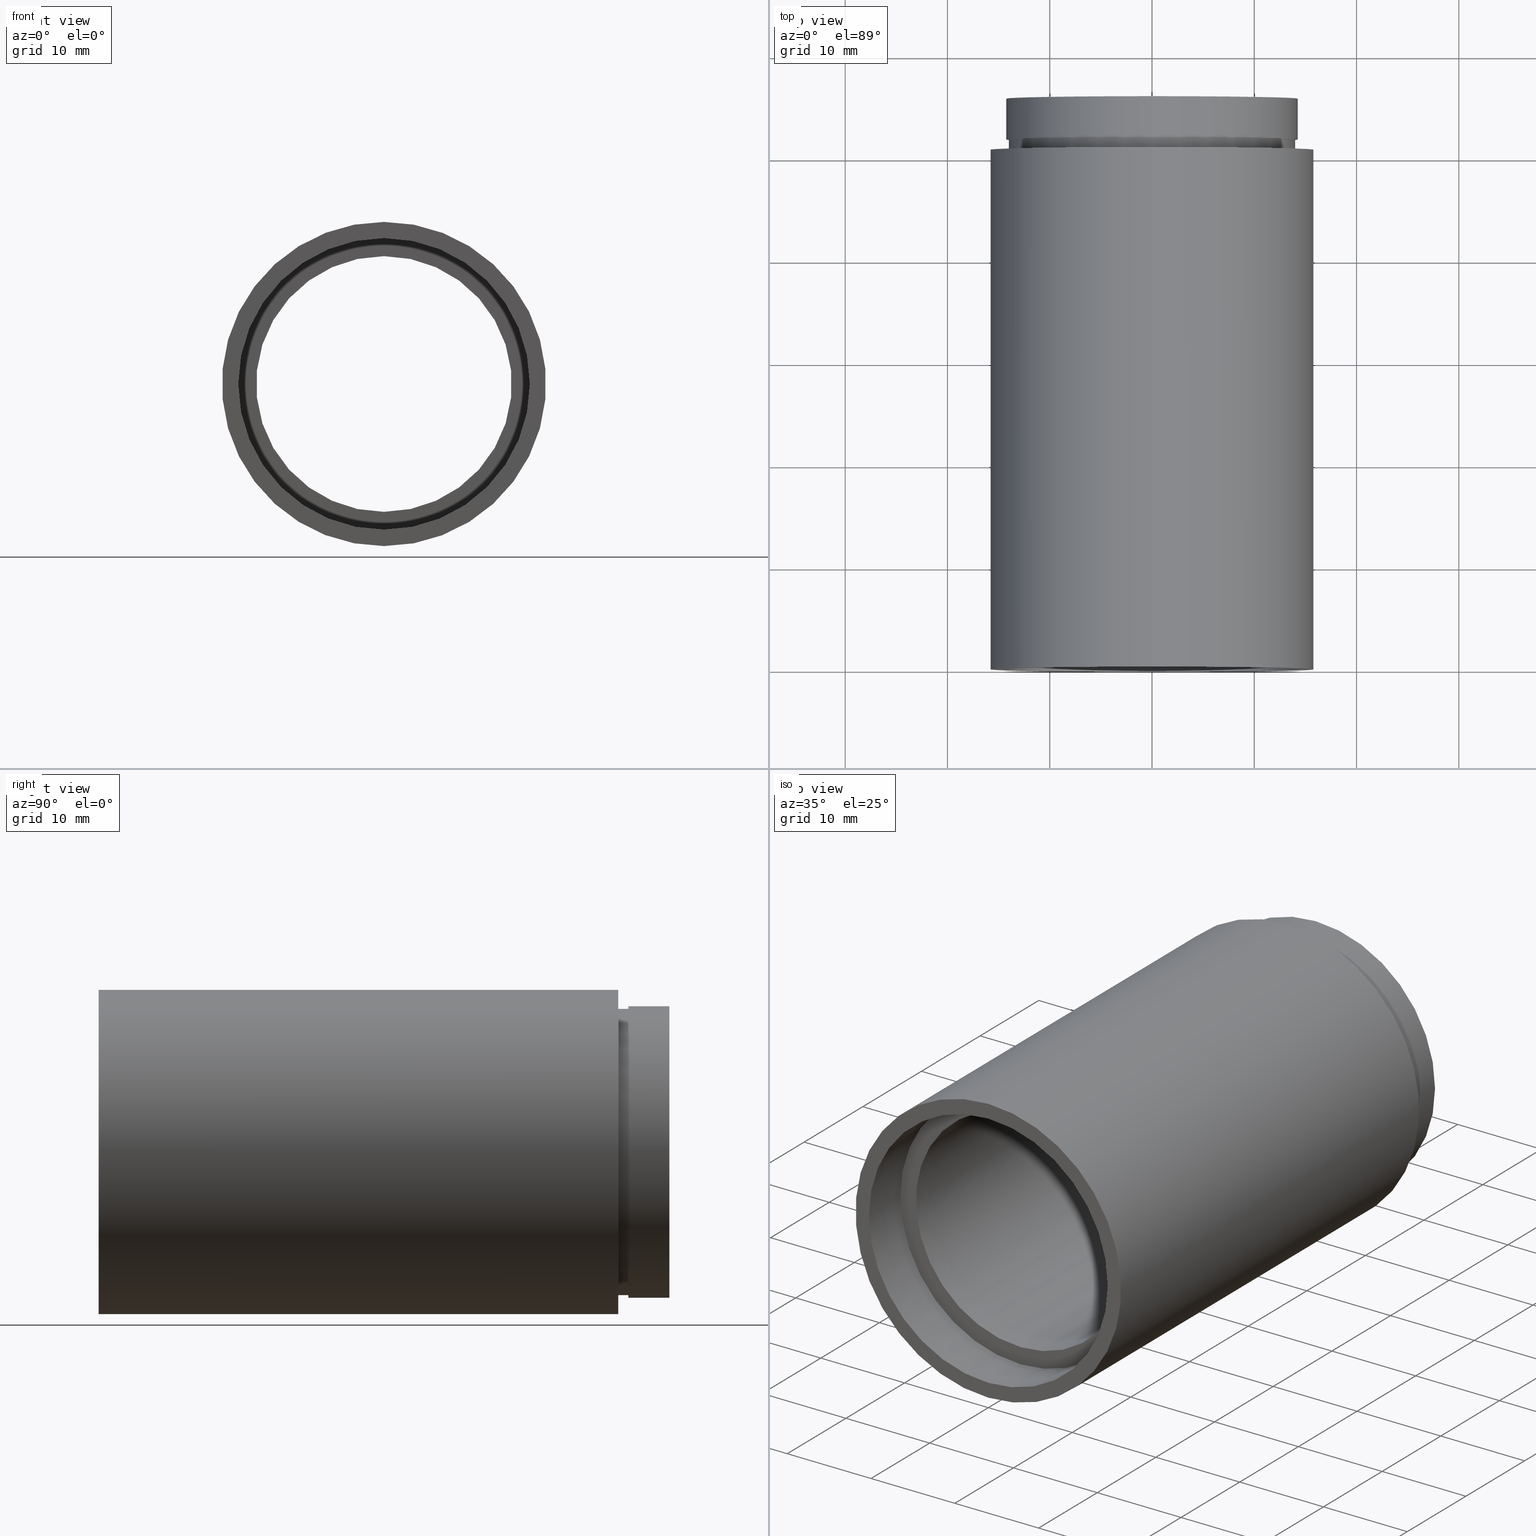
[diagram: canonical four-view strip — front | top / right | iso, engineering-drawing reading convention]
A machine part, canonical four-view strip (front | top / right | iso — engineering-drawing reading convention). The complete STEP part file that produces these views, byte-faithful:
ISO-10303-21;
HEADER;
FILE_DESCRIPTION (( 'STEP AP214' ),
    '1' );
FILE_NAME ('503044.STEP',
    '2019-09-06T06:05:43',
    ( '' ),
    ( '' ),
    'SwSTEP 2.0',
    'SolidWorks 2016',
    '' );
FILE_SCHEMA (( 'AUTOMOTIVE_DESIGN' ));
ENDSEC;

DATA;
#1 = ORIENTED_EDGE ( 'NONE', *, *, #215, .F. ) ;
#2 = CARTESIAN_POINT ( 'NONE',  ( 0.0000000000000000000, 51.79999999999998300, 0.0000000000000000000 ) ) ;
#3 = MANIFOLD_SOLID_BREP ( '��ת1', #25 ) ;
#4 = MECHANICAL_DESIGN_GEOMETRIC_PRESENTATION_REPRESENTATION (  '', ( #426 ), #65 ) ;
#5 =( LENGTH_UNIT ( ) NAMED_UNIT ( * ) SI_UNIT ( .MILLI., .METRE. ) );
#6 = AXIS2_PLACEMENT_3D ( 'NONE', #520, #522, #86 ) ;
#7 = SURFACE_STYLE_USAGE ( .BOTH. , #301 ) ;
#8 = EDGE_LOOP ( 'NONE', ( #607, #56 ) ) ;
#9 = SURFACE_STYLE_FILL_AREA ( #498 ) ;
#10 = AXIS2_PLACEMENT_3D ( 'NONE', #124, #470, #563 ) ;
#11 = VECTOR ( 'NONE', #196, 1000.000000000000000 ) ;
#12 = EDGE_CURVE ( 'NONE', #551, #74, #53, .T. ) ;
#13 = FILL_AREA_STYLE_COLOUR ( '', #140 ) ;
#14 = ORIENTED_EDGE ( 'NONE', *, *, #52, .T. ) ;
#15 = CYLINDRICAL_SURFACE ( 'NONE', #527, 14.25000000000001400 ) ;
#16 = DIRECTION ( 'NONE',  ( 1.000000000000000000, 0.0000000000000000000, 0.0000000000000000000 ) ) ;
#17 = CIRCLE ( 'NONE', #128, 14.00000000000001200 ) ;
#18 = ORIENTED_EDGE ( 'NONE', *, *, #42, .T. ) ;
#19 = ORIENTED_EDGE ( 'NONE', *, *, #236, .T. ) ;
#20 = CARTESIAN_POINT ( 'NONE',  ( 1.745121688784978200E-015, 161.3761669434274500, -14.25000000000000000 ) ) ;
#21 = PRODUCT_DEFINITION_FORMATION_WITH_SPECIFIED_SOURCE ( '�κ�', '', #295, .NOT_KNOWN. ) ;
#22 = CIRCLE ( 'NONE', #143, 14.35000000000001900 ) ;
#23 = FACE_OUTER_BOUND ( 'NONE', #418, .T. ) ;
#24 = DIRECTION ( 'NONE',  ( -0.0000000000000000000, 1.000000000000000000, -0.0000000000000000000 ) ) ;
#25 = CLOSED_SHELL ( 'NONE', ( #580, #434, #207, #622, #352, #342, #587, #243, #344, #500, #58, #494, #446, #401, #104, #251, #303, #159 ) ) ;
#26 = PLANE ( 'NONE',  #355 ) ;
#27 = SURFACE_STYLE_FILL_AREA ( #454 ) ;
#28 =( GEOMETRIC_REPRESENTATION_CONTEXT ( 3 ) GLOBAL_UNCERTAINTY_ASSIGNED_CONTEXT ( ( #409 ) ) GLOBAL_UNIT_ASSIGNED_CONTEXT ( ( #245, #392, #496 ) ) REPRESENTATION_CONTEXT ( 'NONE', 'WORKASPACE' ) );
#29 = CARTESIAN_POINT ( 'NONE',  ( 0.0000000000000000000, 161.3761669434274500, 0.0000000000000000000 ) ) ;
#30 = EDGE_CURVE ( 'NONE', #74, #222, #565, .T. ) ;
#31 = CARTESIAN_POINT ( 'NONE',  ( 0.0000000000000000000, 161.3761669434274500, 14.00000000000001200 ) ) ;
#32 = DIRECTION ( 'NONE',  ( 0.0000000000000000000, -0.0000000000000000000, -1.000000000000000000 ) ) ;
#33 = CYLINDRICAL_SURFACE ( 'NONE', #472, 15.85000000000002100 ) ;
#34 = LINE ( 'NONE', #382, #114 ) ;
#35 = DIRECTION ( 'NONE',  ( -0.0000000000000000000, 1.000000000000000000, -0.0000000000000000000 ) ) ;
#36 = VERTEX_POINT ( 'NONE', #123 ) ;
#37 = COLOUR_RGB ( '',1.000000000000000000, 1.000000000000000000, 1.000000000000000000 ) ;
#38 = DIRECTION ( 'NONE',  ( 0.0000000000000000000, -0.0000000000000000000, -1.000000000000000000 ) ) ;
#39 = DIRECTION ( 'NONE',  ( 0.0000000000000000000, 0.0000000000000000000, 1.000000000000000000 ) ) ;
#40 = DIRECTION ( 'NONE',  ( 0.0000000000000000000, 0.0000000000000000000, 1.000000000000000000 ) ) ;
#41 = DIRECTION ( 'NONE',  ( -0.0000000000000000000, 1.000000000000000000, -0.0000000000000000000 ) ) ;
#42 = EDGE_CURVE ( 'NONE', #186, #495, #507, .T. ) ;
#43 = DIRECTION ( 'NONE',  ( -0.0000000000000000000, 1.000000000000000000, -0.0000000000000000000 ) ) ;
#44 = DIRECTION ( 'NONE',  ( -0.0000000000000000000, 1.000000000000000000, -0.0000000000000000000 ) ) ;
#45 = DIRECTION ( 'NONE',  ( -0.0000000000000000000, 1.000000000000000000, -0.0000000000000000000 ) ) ;
#46 = VERTEX_POINT ( 'NONE', #69 ) ;
#47 = AXIS2_PLACEMENT_3D ( 'NONE', #548, #253, #588 ) ;
#48 = EDGE_CURVE ( 'NONE', #559, #46, #555, .T. ) ;
#49 = CYLINDRICAL_SURFACE ( 'NONE', #47, 14.25000000000001400 ) ;
#50 = CARTESIAN_POINT ( 'NONE',  ( 0.0000000000000000000, 5.499999999999976900, 0.0000000000000000000 ) ) ;
#51 = DIRECTION ( 'NONE',  ( 0.0000000000000000000, 0.0000000000000000000, 1.000000000000000000 ) ) ;
#52 = EDGE_CURVE ( 'NONE', #36, #54, #106, .T. ) ;
#53 = LINE ( 'NONE', #20, #615 ) ;
#54 = VERTEX_POINT ( 'NONE', #477 ) ;
#55 = DIRECTION ( 'NONE',  ( 0.0000000000000000000, 0.0000000000000000000, 1.000000000000000000 ) ) ;
#56 = ORIENTED_EDGE ( 'NONE', *, *, #48, .T. ) ;
#57 = AXIS2_PLACEMENT_3D ( 'NONE', #119, #178, #464 ) ;
#58 = ADVANCED_FACE ( 'NONE', ( #534, #313 ), #228, .F. ) ;
#59 = FILL_AREA_STYLE_COLOUR ( '', #620 ) ;
#60 = STYLED_ITEM ( 'NONE', ( #127 ), #494 ) ;
#61 = EDGE_CURVE ( 'NONE', #174, #541, #185, .T. ) ;
#62 = ORIENTED_EDGE ( 'NONE', *, *, #613, .T. ) ;
#63 = ORIENTED_EDGE ( 'NONE', *, *, #176, .F. ) ;
#64 = SURFACE_STYLE_USAGE ( .BOTH. , #214 ) ;
#65 =( GEOMETRIC_REPRESENTATION_CONTEXT ( 3 ) GLOBAL_UNCERTAINTY_ASSIGNED_CONTEXT ( ( #115 ) ) GLOBAL_UNIT_ASSIGNED_CONTEXT ( ( #581, #192, #624 ) ) REPRESENTATION_CONTEXT ( 'NONE', 'WORKASPACE' ) );
#66 = UNCERTAINTY_MEASURE_WITH_UNIT (LENGTH_MEASURE( 1.000000000000000100E-005 ), #5, 'distance_accuracy_value', 'NONE');
#67 = MECHANICAL_DESIGN_GEOMETRIC_PRESENTATION_REPRESENTATION (  '', ( #168 ), #79 ) ;
#68 = ORIENTED_EDGE ( 'NONE', *, *, #122, .F. ) ;
#69 = CARTESIAN_POINT ( 'NONE',  ( 0.0000000000000000000, 50.79999999999998300, 15.85000000000002100 ) ) ;
#70 = CYLINDRICAL_SURFACE ( 'NONE', #190, 15.85000000000002100 ) ;
#71 = ORIENTED_EDGE ( 'NONE', *, *, #236, .F. ) ;
#72 = EDGE_CURVE ( 'NONE', #266, #425, #298, .T. ) ;
#73 = PRODUCT_DEFINITION_CONTEXT ( 'detailed design', #166, 'design' ) ;
#74 = VERTEX_POINT ( 'NONE', #378 ) ;
#75 = PRESENTATION_STYLE_ASSIGNMENT (( #64 ) ) ;
#76 = SURFACE_SIDE_STYLE ('',( #417 ) ) ;
#77 = PRODUCT_DEFINITION ( 'δ֪', '', #21, #73 ) ;
#78 = CARTESIAN_POINT ( 'NONE',  ( 14.00000000000001200, 50.79999999999998300, 0.0000000000000000000 ) ) ;
#79 =( GEOMETRIC_REPRESENTATION_CONTEXT ( 3 ) GLOBAL_UNCERTAINTY_ASSIGNED_CONTEXT ( ( #562 ) ) GLOBAL_UNIT_ASSIGNED_CONTEXT ( ( #225, #369, #273 ) ) REPRESENTATION_CONTEXT ( 'NONE', 'WORKASPACE' ) );
#80 = EDGE_LOOP ( 'NONE', ( #227, #14, #362, #338 ) ) ;
#81 = VERTEX_POINT ( 'NONE', #193 ) ;
#82 = DIRECTION ( 'NONE',  ( -0.0000000000000000000, 1.000000000000000000, -0.0000000000000000000 ) ) ;
#83 = DIRECTION ( 'NONE',  ( -0.0000000000000000000, 1.000000000000000000, -0.0000000000000000000 ) ) ;
#84 = DIRECTION ( 'NONE',  ( -0.0000000000000000000, 1.000000000000000000, 0.0000000000000000000 ) ) ;
#85 = UNCERTAINTY_MEASURE_WITH_UNIT (LENGTH_MEASURE( 1.000000000000000100E-005 ), #403, 'distance_accuracy_value', 'NONE');
#86 = DIRECTION ( 'NONE',  ( 0.0000000000000000000, 0.0000000000000000000, 1.000000000000000000 ) ) ;
#87 = AXIS2_PLACEMENT_3D ( 'NONE', #341, #490, #198 ) ;
#88 = DIRECTION ( 'NONE',  ( -0.0000000000000000000, 1.000000000000000000, -0.0000000000000000000 ) ) ;
#89 = DIRECTION ( 'NONE',  ( 0.0000000000000000000, 0.0000000000000000000, 1.000000000000000000 ) ) ;
#90 = DIRECTION ( 'NONE',  ( -0.0000000000000000000, 1.000000000000000000, -0.0000000000000000000 ) ) ;
#91 = ORIENTED_EDGE ( 'NONE', *, *, #499, .F. ) ;
#92 = ORIENTED_EDGE ( 'NONE', *, *, #130, .F. ) ;
#93 = DIRECTION ( 'NONE',  ( 0.0000000000000000000, 0.0000000000000000000, 1.000000000000000000 ) ) ;
#94 = CYLINDRICAL_SURFACE ( 'NONE', #577, 14.00000000000001200 ) ;
#95 = FACE_OUTER_BOUND ( 'NONE', #543, .T. ) ;
#96 = CARTESIAN_POINT ( 'NONE',  ( 0.0000000000000000000, 161.3761669434274500, 0.0000000000000000000 ) ) ;
#97 = DIRECTION ( 'NONE',  ( 0.0000000000000000000, 0.0000000000000000000, 1.000000000000000000 ) ) ;
#98 = CARTESIAN_POINT ( 'NONE',  ( 0.0000000000000000000, 161.3761669434274500, 14.35000000000001900 ) ) ;
#99 = CARTESIAN_POINT ( 'NONE',  ( 0.0000000000000000000, 161.3761669434274500, 0.0000000000000000000 ) ) ;
#100 = ORIENTED_EDGE ( 'NONE', *, *, #604, .T. ) ;
#101 = PRESENTATION_LAYER_ASSIGNMENT (  '', '', ( #603 ) ) ;
#102 = FILL_AREA_STYLE_COLOUR ( '', #413 ) ;
#103 = EDGE_CURVE ( 'NONE', #495, #212, #423, .T. ) ;
#104 = ADVANCED_FACE ( 'NONE', ( #23, #135 ), #376, .F. ) ;
#105 = CARTESIAN_POINT ( 'NONE',  ( 1.941065176648557100E-015, 50.79999999999998300, -15.85000000000002100 ) ) ;
#106 = CIRCLE ( 'NONE', #524, 15.85000000000002100 ) ;
#107 = ORIENTED_EDGE ( 'NONE', *, *, #61, .F. ) ;
#108 = DIRECTION ( 'NONE',  ( 0.0000000000000000000, 0.0000000000000000000, 1.000000000000000000 ) ) ;
#109 = ORIENTED_EDGE ( 'NONE', *, *, #30, .F. ) ;
#110 = STYLED_ITEM ( 'NONE', ( #260 ), #207 ) ;
#111 = CIRCLE ( 'NONE', #516, 14.00000000000001200 ) ;
#112 = AXIS2_PLACEMENT_3D ( 'NONE', #450, #445, #55 ) ;
#113 = EDGE_CURVE ( 'NONE', #36, #559, #34, .T. ) ;
#114 = VECTOR ( 'NONE', #35, 1000.000000000000000 ) ;
#115 = UNCERTAINTY_MEASURE_WITH_UNIT (LENGTH_MEASURE( 1.000000000000000100E-005 ), #581, 'distance_accuracy_value', 'NONE');
#116 = EDGE_LOOP ( 'NONE', ( #62, #535 ) ) ;
#117 = AXIS2_PLACEMENT_3D ( 'NONE', #608, #612, #175 ) ;
#118 = ORIENTED_EDGE ( 'NONE', *, *, #599, .T. ) ;
#119 = CARTESIAN_POINT ( 'NONE',  ( 0.0000000000000000000, 4.500000000000032000, 0.0000000000000000000 ) ) ;
#120 = PRESENTATION_LAYER_ASSIGNMENT (  '', '', ( #426 ) ) ;
#121 = PRESENTATION_STYLE_ASSIGNMENT (( #7 ) ) ;
#122 = EDGE_CURVE ( 'NONE', #435, #601, #511, .T. ) ;
#123 = CARTESIAN_POINT ( 'NONE',  ( 1.941065176648557100E-015, -2.775557561562891400E-014, -15.85000000000002100 ) ) ;
#124 = CARTESIAN_POINT ( 'NONE',  ( 0.0000000000000000000, 55.79999999999999000, 0.0000000000000000000 ) ) ;
#125 = VECTOR ( 'NONE', #326, 1000.000000000000000 ) ;
#126 = ORIENTED_EDGE ( 'NONE', *, *, #360, .T. ) ;
#127 = PRESENTATION_STYLE_ASSIGNMENT (( #345 ) ) ;
#128 = AXIS2_PLACEMENT_3D ( 'NONE', #334, #197, #530 ) ;
#129 = FILL_AREA_STYLE_COLOUR ( '', #217 ) ;
#130 = EDGE_CURVE ( 'NONE', #81, #503, #606, .T. ) ;
#131 = CARTESIAN_POINT ( 'NONE',  ( 0.0000000000000000000, 50.79999999999998300, 0.0000000000000000000 ) ) ;
#132 = ADVANCED_BREP_SHAPE_REPRESENTATION ( '503044', ( #3, #488 ), #469 ) ;
#133 = CARTESIAN_POINT ( 'NONE',  ( 0.0000000000000000000, 161.3761669434274500, 0.0000000000000000000 ) ) ;
#134 = DIRECTION ( 'NONE',  ( 0.0000000000000000000, 0.0000000000000000000, 1.000000000000000000 ) ) ;
#135 = FACE_BOUND ( 'NONE', #157, .T. ) ;
#136 = EDGE_LOOP ( 'NONE', ( #314, #556, #300, #320 ) ) ;
#137 = DIRECTION ( 'NONE',  ( 0.0000000000000000000, 0.0000000000000000000, 1.000000000000000000 ) ) ;
#138 = ORIENTED_EDGE ( 'NONE', *, *, #272, .F. ) ;
#139 = FILL_AREA_STYLE_COLOUR ( '', #456 ) ;
#140 = COLOUR_RGB ( '',1.000000000000000000, 1.000000000000000000, 1.000000000000000000 ) ;
#141 = SURFACE_SIDE_STYLE ('',( #246 ) ) ;
#142 = CARTESIAN_POINT ( 'NONE',  ( 1.757368156776454300E-015, 5.499999999999976900, -14.35000000000001900 ) ) ;
#143 = AXIS2_PLACEMENT_3D ( 'NONE', #179, #424, #271 ) ;
#144 = CARTESIAN_POINT ( 'NONE',  ( 0.0000000000000000000, -2.775557561562891400E-014, 0.0000000000000000000 ) ) ;
#145 = CARTESIAN_POINT ( 'NONE',  ( 0.0000000000000000000, 51.79999999999998300, 14.25000000000001400 ) ) ;
#146 = CYLINDRICAL_SURFACE ( 'NONE', #509, 14.35000000000001900 ) ;
#147 = PRODUCT_RELATED_PRODUCT_CATEGORY ( 'part', '', ( #295 ) ) ;
#148 = ORIENTED_EDGE ( 'NONE', *, *, #489, .F. ) ;
#149 = FILL_AREA_STYLE ('',( #139 ) ) ;
#150 = DIRECTION ( 'NONE',  ( -0.0000000000000000000, 1.000000000000000000, -0.0000000000000000000 ) ) ;
#151 = SHAPE_DEFINITION_REPRESENTATION ( #291, #132 ) ;
#152 = DIRECTION ( 'NONE',  ( -0.0000000000000000000, 1.000000000000000000, -0.0000000000000000000 ) ) ;
#153 = LINE ( 'NONE', #384, #429 ) ;
#154 =( LENGTH_UNIT ( ) NAMED_UNIT ( * ) SI_UNIT ( .MILLI., .METRE. ) );
#155 = FILL_AREA_STYLE ('',( #102 ) ) ;
#156 = CARTESIAN_POINT ( 'NONE',  ( 0.0000000000000000000, 2.775557561562891400E-014, 14.25000000000000000 ) ) ;
#157 = EDGE_LOOP ( 'NONE', ( #238, #288 ) ) ;
#158 = DIRECTION ( 'NONE',  ( -0.0000000000000000000, 1.000000000000000000, -0.0000000000000000000 ) ) ;
#159 = ADVANCED_FACE ( 'NONE', ( #379 ), #416, .F. ) ;
#160 =( NAMED_UNIT ( * ) PLANE_ANGLE_UNIT ( ) SI_UNIT ( $, .RADIAN. ) );
#161 = MECHANICAL_DESIGN_GEOMETRIC_PRESENTATION_REPRESENTATION (  '', ( #319 ), #367 ) ;
#162 = DIRECTION ( 'NONE',  ( 0.0000000000000000000, 0.0000000000000000000, 1.000000000000000000 ) ) ;
#163 = CIRCLE ( 'NONE', #10, 12.50000000000002000 ) ;
#164 = DIRECTION ( 'NONE',  ( 0.0000000000000000000, 0.0000000000000000000, 1.000000000000000000 ) ) ;
#165 = ORIENTED_EDGE ( 'NONE', *, *, #463, .F. ) ;
#166 = APPLICATION_CONTEXT ( 'automotive_design' ) ;
#167 = AXIS2_PLACEMENT_3D ( 'NONE', #428, #282, #97 ) ;
#168 = STYLED_ITEM ( 'NONE', ( #405 ), #3 ) ;
#169 = VECTOR ( 'NONE', #576, 1000.000000000000000 ) ;
#170 = PRESENTATION_STYLE_ASSIGNMENT (( #280 ) ) ;
#171 = CIRCLE ( 'NONE', #229, 14.25000000000000000 ) ;
#172 = EDGE_CURVE ( 'NONE', #425, #526, #269, .T. ) ;
#173 = ORIENTED_EDGE ( 'NONE', *, *, #72, .T. ) ;
#174 = VERTEX_POINT ( 'NONE', #191 ) ;
#175 = DIRECTION ( 'NONE',  ( 0.0000000000000000000, 0.0000000000000000000, 1.000000000000000000 ) ) ;
#176 = EDGE_CURVE ( 'NONE', #503, #541, #554, .T. ) ;
#177 = VECTOR ( 'NONE', #389, 1000.000000000000000 ) ;
#178 = DIRECTION ( 'NONE',  ( -0.0000000000000000000, 1.000000000000000000, -0.0000000000000000000 ) ) ;
#179 = CARTESIAN_POINT ( 'NONE',  ( 0.0000000000000000000, 4.499999999999976000, 0.0000000000000000000 ) ) ;
#180 = FILL_AREA_STYLE ('',( #371 ) ) ;
#181 = UNCERTAINTY_MEASURE_WITH_UNIT (LENGTH_MEASURE( 1.000000000000000100E-005 ), #154, 'distance_accuracy_value', 'NONE');
#182 = DIRECTION ( 'NONE',  ( -0.0000000000000000000, 1.000000000000000000, -0.0000000000000000000 ) ) ;
#183 = EDGE_CURVE ( 'NONE', #174, #81, #481, .T. ) ;
#184 = FACE_OUTER_BOUND ( 'NONE', #466, .T. ) ;
#185 = LINE ( 'NONE', #430, #125 ) ;
#186 = VERTEX_POINT ( 'NONE', #487 ) ;
#187 = ORIENTED_EDGE ( 'NONE', *, *, #215, .T. ) ;
#188 = CARTESIAN_POINT ( 'NONE',  ( 0.0000000000000000000, 50.79999999999998300, 0.0000000000000000000 ) ) ;
#189 = DIRECTION ( 'NONE',  ( -0.0000000000000000000, 1.000000000000000000, -0.0000000000000000000 ) ) ;
#190 = AXIS2_PLACEMENT_3D ( 'NONE', #133, #571, #566 ) ;
#191 = CARTESIAN_POINT ( 'NONE',  ( 1.530808498934193900E-015, 5.499999999999976900, -12.50000000000002000 ) ) ;
#192 =( NAMED_UNIT ( * ) PLANE_ANGLE_UNIT ( ) SI_UNIT ( $, .RADIAN. ) );
#193 = CARTESIAN_POINT ( 'NONE',  ( 0.0000000000000000000, 5.499999999999976900, 12.50000000000002000 ) ) ;
#194 =( GEOMETRIC_REPRESENTATION_CONTEXT ( 3 ) GLOBAL_UNCERTAINTY_ASSIGNED_CONTEXT ( ( #66 ) ) GLOBAL_UNIT_ASSIGNED_CONTEXT ( ( #5, #399, #594 ) ) REPRESENTATION_CONTEXT ( 'NONE', 'WORKASPACE' ) );
#195 = ORIENTED_EDGE ( 'NONE', *, *, #463, .T. ) ;
#196 = DIRECTION ( 'NONE',  ( -0.0000000000000000000, 1.000000000000000000, -0.0000000000000000000 ) ) ;
#197 = DIRECTION ( 'NONE',  ( -0.0000000000000000000, 1.000000000000000000, -0.0000000000000000000 ) ) ;
#198 = DIRECTION ( 'NONE',  ( 0.0000000000000000000, 0.0000000000000000000, 1.000000000000000000 ) ) ;
#199 = SURFACE_SIDE_STYLE ('',( #478 ) ) ;
#200 = CARTESIAN_POINT ( 'NONE',  ( 1.745121688784980200E-015, 161.3761669434274500, -14.25000000000001400 ) ) ;
#201 = CARTESIAN_POINT ( 'NONE',  ( 0.0000000000000000000, 161.3761669434274500, 0.0000000000000000000 ) ) ;
#202 = LINE ( 'NONE', #200, #169 ) ;
#203 = FILL_AREA_STYLE ('',( #497 ) ) ;
#204 = ORIENTED_EDGE ( 'NONE', *, *, #12, .T. ) ;
#205 =( NAMED_UNIT ( * ) SI_UNIT ( $, .STERADIAN. ) SOLID_ANGLE_UNIT ( ) );
#206 = PRESENTATION_LAYER_ASSIGNMENT (  '', '', ( #168 ) ) ;
#207 = ADVANCED_FACE ( 'NONE', ( #422 ), #324, .F. ) ;
#208 = DIRECTION ( 'NONE',  ( -0.0000000000000000000, 1.000000000000000000, -0.0000000000000000000 ) ) ;
#209 = CARTESIAN_POINT ( 'NONE',  ( 0.0000000000000000000, 5.499999999999976900, 14.35000000000001900 ) ) ;
#210 = DIRECTION ( 'NONE',  ( 0.0000000000000000000, 0.0000000000000000000, 1.000000000000000000 ) ) ;
#211 = FACE_OUTER_BOUND ( 'NONE', #239, .T. ) ;
#212 = VERTEX_POINT ( 'NONE', #493 ) ;
#213 = FACE_BOUND ( 'NONE', #512, .T. ) ;
#214 = SURFACE_SIDE_STYLE ('',( #27 ) ) ;
#215 = EDGE_CURVE ( 'NONE', #248, #526, #361, .T. ) ;
#216 = APPLICATION_CONTEXT ( 'automotive_design' ) ;
#217 = COLOUR_RGB ( '',1.000000000000000000, 1.000000000000000000, 1.000000000000000000 ) ;
#218 = EDGE_LOOP ( 'NONE', ( #473, #255 ) ) ;
#219 = EDGE_CURVE ( 'NONE', #601, #370, #202, .T. ) ;
#220 = CIRCLE ( 'NONE', #539, 14.25000000000000000 ) ;
#221 = ORIENTED_EDGE ( 'NONE', *, *, #305, .T. ) ;
#222 = VERTEX_POINT ( 'NONE', #348 ) ;
#223 = MECHANICAL_DESIGN_GEOMETRIC_PRESENTATION_REPRESENTATION (  '', ( #537 ), #618 ) ;
#224 = CARTESIAN_POINT ( 'NONE',  ( 0.0000000000000000000, 55.79999999999999000, 0.0000000000000000000 ) ) ;
#225 =( LENGTH_UNIT ( ) NAMED_UNIT ( * ) SI_UNIT ( .MILLI., .METRE. ) );
#226 = FACE_OUTER_BOUND ( 'NONE', #218, .T. ) ;
#227 = ORIENTED_EDGE ( 'NONE', *, *, #113, .F. ) ;
#228 = PLANE ( 'NONE',  #557 ) ;
#229 = AXIS2_PLACEMENT_3D ( 'NONE', #590, #354, #395 ) ;
#230 = CARTESIAN_POINT ( 'NONE',  ( 14.25000000000000000, 4.500000000000008000, 0.0000000000000000000 ) ) ;
#231 = AXIS2_PLACEMENT_3D ( 'NONE', #432, #568, #427 ) ;
#232 = CARTESIAN_POINT ( 'NONE',  ( 12.50000000000002000, 5.499999999999984000, 0.0000000000000000000 ) ) ;
#233 = CARTESIAN_POINT ( 'NONE',  ( 0.0000000000000000000, 161.3761669434274500, 12.50000000000002000 ) ) ;
#234 = PRESENTATION_LAYER_ASSIGNMENT (  '', '', ( #60 ) ) ;
#235 = PLANE ( 'NONE',  #329 ) ;
#236 = EDGE_CURVE ( 'NONE', #526, #425, #318, .T. ) ;
#237 = DIRECTION ( 'NONE',  ( -0.0000000000000000000, 1.000000000000000000, -0.0000000000000000000 ) ) ;
#238 = ORIENTED_EDGE ( 'NONE', *, *, #377, .T. ) ;
#239 = EDGE_LOOP ( 'NONE', ( #118, #400, #279, #327 ) ) ;
#240 = CARTESIAN_POINT ( 'NONE',  ( 0.0000000000000000000, 50.79999999999998300, 14.00000000000001200 ) ) ;
#241 =( NAMED_UNIT ( * ) SI_UNIT ( $, .STERADIAN. ) SOLID_ANGLE_UNIT ( ) );
#242 = CARTESIAN_POINT ( 'NONE',  ( 1.714505518806296000E-015, 51.79999999999998300, -14.00000000000001200 ) ) ;
#243 = ADVANCED_FACE ( 'NONE', ( #597 ), #33, .T. ) ;
#244 = MECHANICAL_DESIGN_GEOMETRIC_PRESENTATION_REPRESENTATION (  '', ( #60 ), #28 ) ;
#245 =( LENGTH_UNIT ( ) NAMED_UNIT ( * ) SI_UNIT ( .MILLI., .METRE. ) );
#246 = SURFACE_STYLE_FILL_AREA ( #570 ) ;
#247 = DIRECTION ( 'NONE',  ( 0.0000000000000000000, 0.0000000000000000000, 1.000000000000000000 ) ) ;
#248 = VERTEX_POINT ( 'NONE', #393 ) ;
#249 = SURFACE_STYLE_USAGE ( .BOTH. , #386 ) ;
#250 = ORIENTED_EDGE ( 'NONE', *, *, #462, .F. ) ;
#251 = ADVANCED_FACE ( 'NONE', ( #442 ), #347, .F. ) ;
#252 = EDGE_LOOP ( 'NONE', ( #165, #18, #616, #148 ) ) ;
#253 = DIRECTION ( 'NONE',  ( -0.0000000000000000000, 1.000000000000000000, -0.0000000000000000000 ) ) ;
#254 = AXIS2_PLACEMENT_3D ( 'NONE', #232, #617, #421 ) ;
#255 = ORIENTED_EDGE ( 'NONE', *, *, #414, .T. ) ;
#256 = SURFACE_STYLE_USAGE ( .BOTH. , #504 ) ;
#257 = CIRCLE ( 'NONE', #264, 14.00000000000001200 ) ;
#258 = AXIS2_PLACEMENT_3D ( 'NONE', #359, #208, #210 ) ;
#259 = CARTESIAN_POINT ( 'NONE',  ( 0.0000000000000000000, 55.79999999999999000, 12.50000000000002000 ) ) ;
#260 = PRESENTATION_STYLE_ASSIGNMENT (( #287 ) ) ;
#261 = VECTOR ( 'NONE', #43, 1000.000000000000000 ) ;
#262 = ORIENTED_EDGE ( 'NONE', *, *, #365, .F. ) ;
#263 =( NAMED_UNIT ( * ) SI_UNIT ( $, .STERADIAN. ) SOLID_ANGLE_UNIT ( ) );
#264 = AXIS2_PLACEMENT_3D ( 'NONE', #586, #158, #447 ) ;
#265 = AXIS2_PLACEMENT_3D ( 'NONE', #321, #24, #89 ) ;
#266 = VERTEX_POINT ( 'NONE', #274 ) ;
#267 = VERTEX_POINT ( 'NONE', #328 ) ;
#268 = VECTOR ( 'NONE', #351, 1000.000000000000000 ) ;
#269 = CIRCLE ( 'NONE', #547, 14.35000000000001900 ) ;
#270 = ORIENTED_EDGE ( 'NONE', *, *, #414, .F. ) ;
#271 = DIRECTION ( 'NONE',  ( 0.0000000000000000000, 0.0000000000000000000, 1.000000000000000000 ) ) ;
#272 = EDGE_CURVE ( 'NONE', #267, #370, #286, .T. ) ;
#273 =( NAMED_UNIT ( * ) SI_UNIT ( $, .STERADIAN. ) SOLID_ANGLE_UNIT ( ) );
#274 = CARTESIAN_POINT ( 'NONE',  ( 1.757368156776454300E-015, 4.499999999999976000, -14.35000000000001900 ) ) ;
#275 = EDGE_CURVE ( 'NONE', #541, #503, #163, .T. ) ;
#276 = DIRECTION ( 'NONE',  ( -0.0000000000000000000, 1.000000000000000000, -0.0000000000000000000 ) ) ;
#277 = FACE_OUTER_BOUND ( 'NONE', #518, .T. ) ;
#278 = COLOUR_RGB ( '',1.000000000000000000, 1.000000000000000000, 1.000000000000000000 ) ;
#279 = ORIENTED_EDGE ( 'NONE', *, *, #552, .F. ) ;
#280 = SURFACE_STYLE_USAGE ( .BOTH. , #141 ) ;
#281 = ORIENTED_EDGE ( 'NONE', *, *, #219, .F. ) ;
#282 = DIRECTION ( 'NONE',  ( -0.0000000000000000000, 1.000000000000000000, -0.0000000000000000000 ) ) ;
#283 = AXIS2_PLACEMENT_3D ( 'NONE', #439, #387, #579 ) ;
#284 = LINE ( 'NONE', #443, #304 ) ;
#285 = AXIS2_PLACEMENT_3D ( 'NONE', #340, #44, #486 ) ;
#286 = CIRCLE ( 'NONE', #602, 14.25000000000001400 ) ;
#287 = SURFACE_STYLE_USAGE ( .BOTH. , #292 ) ;
#288 = ORIENTED_EDGE ( 'NONE', *, *, #183, .T. ) ;
#289 = ORIENTED_EDGE ( 'NONE', *, *, #130, .T. ) ;
#290 = DIRECTION ( 'NONE',  ( -0.0000000000000000000, 1.000000000000000000, -0.0000000000000000000 ) ) ;
#291 = PRODUCT_DEFINITION_SHAPE ( 'NONE', 'NONE',  #77 ) ;
#292 = SURFACE_SIDE_STYLE ('',( #583 ) ) ;
#293 = DIRECTION ( 'NONE',  ( 0.0000000000000000000, -0.0000000000000000000, -1.000000000000000000 ) ) ;
#294 = CARTESIAN_POINT ( 'NONE',  ( 0.0000000000000000000, 161.3761669434274500, 15.85000000000002100 ) ) ;
#295 = PRODUCT ( '503044', '503044', '', ( #308 ) ) ;
#296 = CARTESIAN_POINT ( 'NONE',  ( 1.745121688784980200E-015, 51.79999999999998300, -14.25000000000001400 ) ) ;
#297 = AXIS2_PLACEMENT_3D ( 'NONE', #339, #540, #247 ) ;
#298 = LINE ( 'NONE', #480, #502 ) ;
#299 = ORIENTED_EDGE ( 'NONE', *, *, #564, .T. ) ;
#300 = ORIENTED_EDGE ( 'NONE', *, *, #499, .T. ) ;
#301 = SURFACE_SIDE_STYLE ('',( #528 ) ) ;
#302 = PRESENTATION_LAYER_ASSIGNMENT (  '', '', ( #537 ) ) ;
#303 = ADVANCED_FACE ( 'NONE', ( #312, #184 ), #235, .F. ) ;
#304 = VECTOR ( 'NONE', #501, 1000.000000000000000 ) ;
#305 = EDGE_CURVE ( 'NONE', #248, #266, #22, .T. ) ;
#306 = CARTESIAN_POINT ( 'NONE',  ( 0.0000000000000000000, 0.0000000000000000000, 0.0000000000000000000 ) ) ;
#307 = EDGE_LOOP ( 'NONE', ( #449, #451, #598, #92 ) ) ;
#308 = PRODUCT_CONTEXT ( 'NONE', #216, 'mechanical' ) ;
#309 = ORIENTED_EDGE ( 'NONE', *, *, #377, .F. ) ;
#310 = PRESENTATION_LAYER_ASSIGNMENT (  '', '', ( #589 ) ) ;
#311 =( LENGTH_UNIT ( ) NAMED_UNIT ( * ) SI_UNIT ( .MILLI., .METRE. ) );
#312 = FACE_BOUND ( 'NONE', #574, .T. ) ;
#313 = FACE_BOUND ( 'NONE', #116, .T. ) ;
#314 = ORIENTED_EDGE ( 'NONE', *, *, #12, .F. ) ;
#315 = UNCERTAINTY_MEASURE_WITH_UNIT (LENGTH_MEASURE( 1.000000000000000100E-005 ), #433, 'distance_accuracy_value', 'NONE');
#316 = CIRCLE ( 'NONE', #258, 15.85000000000002100 ) ;
#317 = AXIS2_PLACEMENT_3D ( 'NONE', #29, #323, #420 ) ;
#318 = CIRCLE ( 'NONE', #87, 14.35000000000001900 ) ;
#319 = STYLED_ITEM ( 'NONE', ( #121 ), #580 ) ;
#320 = ORIENTED_EDGE ( 'NONE', *, *, #335, .T. ) ;
#321 = CARTESIAN_POINT ( 'NONE',  ( 0.0000000000000000000, 5.499999999999976900, 0.0000000000000000000 ) ) ;
#322 = CIRCLE ( 'NONE', #112, 15.85000000000002100 ) ;
#323 = DIRECTION ( 'NONE',  ( -0.0000000000000000000, 1.000000000000000000, -0.0000000000000000000 ) ) ;
#324 = CYLINDRICAL_SURFACE ( 'NONE', #297, 12.50000000000002000 ) ;
#325 = ORIENTED_EDGE ( 'NONE', *, *, #52, .F. ) ;
#326 = DIRECTION ( 'NONE',  ( -0.0000000000000000000, 1.000000000000000000, -0.0000000000000000000 ) ) ;
#327 = ORIENTED_EDGE ( 'NONE', *, *, #582, .F. ) ;
#328 = CARTESIAN_POINT ( 'NONE',  ( 0.0000000000000000000, 55.79999999999999000, 14.25000000000001400 ) ) ;
#329 = AXIS2_PLACEMENT_3D ( 'NONE', #230, #479, #32 ) ;
#330 =( NAMED_UNIT ( * ) PLANE_ANGLE_UNIT ( ) SI_UNIT ( $, .RADIAN. ) );
#331 = DIRECTION ( 'NONE',  ( 0.0000000000000000000, -1.000000000000000000, 0.0000000000000000000 ) ) ;
#332 = CARTESIAN_POINT ( 'NONE',  ( 14.00000000000001200, 51.79999999999998300, 0.0000000000000000000 ) ) ;
#333 = AXIS2_PLACEMENT_3D ( 'NONE', #437, #431, #293 ) ;
#334 = CARTESIAN_POINT ( 'NONE',  ( 0.0000000000000000000, 50.79999999999998300, 0.0000000000000000000 ) ) ;
#335 = EDGE_CURVE ( 'NONE', #222, #74, #605, .T. ) ;
#336 = DIRECTION ( 'NONE',  ( 0.0000000000000000000, 0.0000000000000000000, 1.000000000000000000 ) ) ;
#337 = PLANE ( 'NONE',  #333 ) ;
#338 = ORIENTED_EDGE ( 'NONE', *, *, #48, .F. ) ;
#339 = CARTESIAN_POINT ( 'NONE',  ( 0.0000000000000000000, 161.3761669434274500, 0.0000000000000000000 ) ) ;
#340 = CARTESIAN_POINT ( 'NONE',  ( 0.0000000000000000000, 55.79999999999999000, 0.0000000000000000000 ) ) ;
#341 = CARTESIAN_POINT ( 'NONE',  ( 0.0000000000000000000, 5.499999999999976900, 0.0000000000000000000 ) ) ;
#342 = ADVANCED_FACE ( 'NONE', ( #211 ), #70, .T. ) ;
#343 = DIRECTION ( 'NONE',  ( 0.0000000000000000000, 0.0000000000000000000, 1.000000000000000000 ) ) ;
#344 = ADVANCED_FACE ( 'NONE', ( #471, #517 ), #26, .F. ) ;
#345 = SURFACE_STYLE_USAGE ( .BOTH. , #199 ) ;
#346 = MECHANICAL_DESIGN_GEOMETRIC_PRESENTATION_REPRESENTATION (  '', ( #589 ), #375 ) ;
#347 = CYLINDRICAL_SURFACE ( 'NONE', #514, 14.35000000000001900 ) ;
#348 = CARTESIAN_POINT ( 'NONE',  ( 0.0000000000000000000, 4.500000000000032000, 14.25000000000000000 ) ) ;
#349 = EDGE_LOOP ( 'NONE', ( #575, #485, #187, #19 ) ) ;
#350 = EDGE_LOOP ( 'NONE', ( #467, #195, #411, #593 ) ) ;
#351 = DIRECTION ( 'NONE',  ( -0.0000000000000000000, 1.000000000000000000, -0.0000000000000000000 ) ) ;
#352 = ADVANCED_FACE ( 'NONE', ( #388 ), #465, .T. ) ;
#353 = CARTESIAN_POINT ( 'NONE',  ( 14.25000000000000000, 8.726008142763375300E-015, 0.0000000000000000000 ) ) ;
#354 = DIRECTION ( 'NONE',  ( -0.0000000000000000000, 1.000000000000000000, -0.0000000000000000000 ) ) ;
#355 = AXIS2_PLACEMENT_3D ( 'NONE', #78, #331, #38 ) ;
#356 = SURFACE_STYLE_FILL_AREA ( #578 ) ;
#357 = ORIENTED_EDGE ( 'NONE', *, *, #275, .F. ) ;
#358 = ORIENTED_EDGE ( 'NONE', *, *, #453, .F. ) ;
#359 = CARTESIAN_POINT ( 'NONE',  ( 0.0000000000000000000, 50.79999999999998300, 0.0000000000000000000 ) ) ;
#360 = EDGE_CURVE ( 'NONE', #551, #513, #220, .T. ) ;
#361 = LINE ( 'NONE', #98, #11 ) ;
#362 = ORIENTED_EDGE ( 'NONE', *, *, #582, .T. ) ;
#363 =( NAMED_UNIT ( * ) PLANE_ANGLE_UNIT ( ) SI_UNIT ( $, .RADIAN. ) );
#364 = ORIENTED_EDGE ( 'NONE', *, *, #122, .T. ) ;
#365 = EDGE_CURVE ( 'NONE', #601, #435, #558, .T. ) ;
#366 = APPLICATION_PROTOCOL_DEFINITION ( 'draft international standard', 'automotive_design', 1998, #216 ) ;
#367 =( GEOMETRIC_REPRESENTATION_CONTEXT ( 3 ) GLOBAL_UNCERTAINTY_ASSIGNED_CONTEXT ( ( #85 ) ) GLOBAL_UNIT_ASSIGNED_CONTEXT ( ( #403, #160, #205 ) ) REPRESENTATION_CONTEXT ( 'NONE', 'WORKASPACE' ) );
#368 = EDGE_LOOP ( 'NONE', ( #364, #560, #138, #567 ) ) ;
#369 =( NAMED_UNIT ( * ) PLANE_ANGLE_UNIT ( ) SI_UNIT ( $, .RADIAN. ) );
#370 = VERTEX_POINT ( 'NONE', #372 ) ;
#371 = FILL_AREA_STYLE_COLOUR ( '', #37 ) ;
#372 = CARTESIAN_POINT ( 'NONE',  ( 1.745121688784980200E-015, 55.79999999999999000, -14.25000000000001400 ) ) ;
#373 = DIRECTION ( 'NONE',  ( -0.0000000000000000000, 1.000000000000000000, -0.0000000000000000000 ) ) ;
#374 = ORIENTED_EDGE ( 'NONE', *, *, #30, .T. ) ;
#375 =( GEOMETRIC_REPRESENTATION_CONTEXT ( 3 ) GLOBAL_UNCERTAINTY_ASSIGNED_CONTEXT ( ( #315 ) ) GLOBAL_UNIT_ASSIGNED_CONTEXT ( ( #433, #330, #241 ) ) REPRESENTATION_CONTEXT ( 'NONE', 'WORKASPACE' ) );
#376 = PLANE ( 'NONE',  #254 ) ;
#377 = EDGE_CURVE ( 'NONE', #81, #174, #404, .T. ) ;
#378 = CARTESIAN_POINT ( 'NONE',  ( 1.745121688784978200E-015, 4.500000000000032000, -14.25000000000000000 ) ) ;
#379 = FACE_OUTER_BOUND ( 'NONE', #136, .T. ) ;
#380 = EDGE_LOOP ( 'NONE', ( #398, #204, #374, #91 ) ) ;
#381 = EDGE_LOOP ( 'NONE', ( #358, #595 ) ) ;
#382 = CARTESIAN_POINT ( 'NONE',  ( 1.941065176648557100E-015, 161.3761669434274500, -15.85000000000002100 ) ) ;
#383 = FACE_OUTER_BOUND ( 'NONE', #380, .T. ) ;
#384 = CARTESIAN_POINT ( 'NONE',  ( 0.0000000000000000000, 161.3761669434274500, 14.25000000000000000 ) ) ;
#385 = AXIS2_PLACEMENT_3D ( 'NONE', #533, #290, #343 ) ;
#386 = SURFACE_SIDE_STYLE ('',( #356 ) ) ;
#387 = DIRECTION ( 'NONE',  ( -0.0000000000000000000, 1.000000000000000000, -0.0000000000000000000 ) ) ;
#388 = FACE_OUTER_BOUND ( 'NONE', #350, .T. ) ;
#389 = DIRECTION ( 'NONE',  ( -0.0000000000000000000, 1.000000000000000000, -0.0000000000000000000 ) ) ;
#390 =( NAMED_UNIT ( * ) SI_UNIT ( $, .STERADIAN. ) SOLID_ANGLE_UNIT ( ) );
#391 = ORIENTED_EDGE ( 'NONE', *, *, #365, .T. ) ;
#392 =( NAMED_UNIT ( * ) PLANE_ANGLE_UNIT ( ) SI_UNIT ( $, .RADIAN. ) );
#393 = CARTESIAN_POINT ( 'NONE',  ( 0.0000000000000000000, 4.499999999999976000, 14.35000000000001900 ) ) ;
#394 = CARTESIAN_POINT ( 'NONE',  ( 0.0000000000000000000, 161.3761669434274500, 0.0000000000000000000 ) ) ;
#395 = DIRECTION ( 'NONE',  ( 0.0000000000000000000, 0.0000000000000000000, 1.000000000000000000 ) ) ;
#396 = AXIS2_PLACEMENT_3D ( 'NONE', #614, #276, #134 ) ;
#397 = FACE_BOUND ( 'NONE', #550, .T. ) ;
#398 = ORIENTED_EDGE ( 'NONE', *, *, #360, .F. ) ;
#399 =( NAMED_UNIT ( * ) PLANE_ANGLE_UNIT ( ) SI_UNIT ( $, .RADIAN. ) );
#400 = ORIENTED_EDGE ( 'NONE', *, *, #113, .T. ) ;
#401 = ADVANCED_FACE ( 'NONE', ( #592 ), #410, .F. ) ;
#402 = CARTESIAN_POINT ( 'NONE',  ( 1.745121688784978200E-015, 2.775557561562891400E-014, -14.25000000000000000 ) ) ;
#403 =( LENGTH_UNIT ( ) NAMED_UNIT ( * ) SI_UNIT ( .MILLI., .METRE. ) );
#404 = CIRCLE ( 'NONE', #265, 12.50000000000002000 ) ;
#405 = PRESENTATION_STYLE_ASSIGNMENT (( #519 ) ) ;
#406 = VERTEX_POINT ( 'NONE', #242 ) ;
#407 = MECHANICAL_DESIGN_GEOMETRIC_PRESENTATION_REPRESENTATION (  '', ( #110 ), #441 ) ;
#408 = FACE_OUTER_BOUND ( 'NONE', #252, .T. ) ;
#409 = UNCERTAINTY_MEASURE_WITH_UNIT (LENGTH_MEASURE( 1.000000000000000100E-005 ), #245, 'distance_accuracy_value', 'NONE');
#410 = CYLINDRICAL_SURFACE ( 'NONE', #167, 12.50000000000002000 ) ;
#411 = ORIENTED_EDGE ( 'NONE', *, *, #613, .F. ) ;
#412 = EDGE_LOOP ( 'NONE', ( #107, #309, #289, #474 ) ) ;
#413 = COLOUR_RGB ( '',1.000000000000000000, 1.000000000000000000, 1.000000000000000000 ) ;
#414 = EDGE_CURVE ( 'NONE', #370, #267, #492, .T. ) ;
#415 = PRESENTATION_LAYER_ASSIGNMENT (  '', '', ( #319 ) ) ;
#416 = CYLINDRICAL_SURFACE ( 'NONE', #396, 14.25000000000000000 ) ;
#417 = SURFACE_STYLE_FILL_AREA ( #180 ) ;
#418 = EDGE_LOOP ( 'NONE', ( #71, #444 ) ) ;
#419 = CARTESIAN_POINT ( 'NONE',  ( 0.0000000000000000000, 161.3761669434274500, 0.0000000000000000000 ) ) ;
#420 = DIRECTION ( 'NONE',  ( 0.0000000000000000000, 0.0000000000000000000, 1.000000000000000000 ) ) ;
#421 = DIRECTION ( 'NONE',  ( 0.0000000000000000000, 0.0000000000000000000, 1.000000000000000000 ) ) ;
#422 = FACE_OUTER_BOUND ( 'NONE', #307, .T. ) ;
#423 = LINE ( 'NONE', #31, #525 ) ;
#424 = DIRECTION ( 'NONE',  ( -0.0000000000000000000, 1.000000000000000000, -0.0000000000000000000 ) ) ;
#425 = VERTEX_POINT ( 'NONE', #142 ) ;
#426 = STYLED_ITEM ( 'NONE', ( #532 ), #401 ) ;
#427 = DIRECTION ( 'NONE',  ( 0.0000000000000000000, 0.0000000000000000000, 1.000000000000000000 ) ) ;
#428 = CARTESIAN_POINT ( 'NONE',  ( 0.0000000000000000000, 161.3761669434274500, 0.0000000000000000000 ) ) ;
#429 = VECTOR ( 'NONE', #482, 1000.000000000000000 ) ;
#430 = CARTESIAN_POINT ( 'NONE',  ( 1.530808498934193900E-015, 161.3761669434274500, -12.50000000000002000 ) ) ;
#431 = DIRECTION ( 'NONE',  ( 0.0000000000000000000, -1.000000000000000000, 0.0000000000000000000 ) ) ;
#432 = CARTESIAN_POINT ( 'NONE',  ( 0.0000000000000000000, 51.79999999999998300, 0.0000000000000000000 ) ) ;
#433 =( LENGTH_UNIT ( ) NAMED_UNIT ( * ) SI_UNIT ( .MILLI., .METRE. ) );
#434 = ADVANCED_FACE ( 'NONE', ( #277 ), #146, .F. ) ;
#435 = VERTEX_POINT ( 'NONE', #145 ) ;
#436 = ORIENTED_EDGE ( 'NONE', *, *, #172, .T. ) ;
#437 = CARTESIAN_POINT ( 'NONE',  ( 12.50000000000002000, 55.79999999999999000, 0.0000000000000000000 ) ) ;
#438 =( NAMED_UNIT ( * ) PLANE_ANGLE_UNIT ( ) SI_UNIT ( $, .RADIAN. ) );
#439 = CARTESIAN_POINT ( 'NONE',  ( 0.0000000000000000000, 55.79999999999999000, 0.0000000000000000000 ) ) ;
#440 = DIRECTION ( 'NONE',  ( 0.0000000000000000000, 0.0000000000000000000, 1.000000000000000000 ) ) ;
#441 =( GEOMETRIC_REPRESENTATION_CONTEXT ( 3 ) GLOBAL_UNCERTAINTY_ASSIGNED_CONTEXT ( ( #181 ) ) GLOBAL_UNIT_ASSIGNED_CONTEXT ( ( #154, #438, #390 ) ) REPRESENTATION_CONTEXT ( 'NONE', 'WORKASPACE' ) );
#442 = FACE_OUTER_BOUND ( 'NONE', #349, .T. ) ;
#443 = CARTESIAN_POINT ( 'NONE',  ( 0.0000000000000000000, 161.3761669434274500, 14.25000000000001400 ) ) ;
#444 = ORIENTED_EDGE ( 'NONE', *, *, #172, .F. ) ;
#445 = DIRECTION ( 'NONE',  ( -0.0000000000000000000, 1.000000000000000000, -0.0000000000000000000 ) ) ;
#446 = ADVANCED_FACE ( 'NONE', ( #397, #226 ), #337, .F. ) ;
#447 = DIRECTION ( 'NONE',  ( 0.0000000000000000000, 0.0000000000000000000, 1.000000000000000000 ) ) ;
#448 = AXIS2_PLACEMENT_3D ( 'NONE', #50, #150, #536 ) ;
#449 = ORIENTED_EDGE ( 'NONE', *, *, #183, .F. ) ;
#450 = CARTESIAN_POINT ( 'NONE',  ( 0.0000000000000000000, -2.775557561562891400E-014, 0.0000000000000000000 ) ) ;
#451 = ORIENTED_EDGE ( 'NONE', *, *, #61, .T. ) ;
#452 = MECHANICAL_DESIGN_GEOMETRIC_PRESENTATION_REPRESENTATION (  '', ( #603 ), #194 ) ;
#453 = EDGE_CURVE ( 'NONE', #495, #186, #17, .T. ) ;
#454 = FILL_AREA_STYLE ('',( #13 ) ) ;
#455 = FACE_OUTER_BOUND ( 'NONE', #508, .T. ) ;
#456 = COLOUR_RGB ( '',1.000000000000000000, 1.000000000000000000, 1.000000000000000000 ) ;
#457 = UNCERTAINTY_MEASURE_WITH_UNIT (LENGTH_MEASURE( 1.000000000000000100E-005 ), #311, 'distance_accuracy_value', 'NONE');
#458 = APPLICATION_PROTOCOL_DEFINITION ( 'draft international standard', 'automotive_design', 1998, #166 ) ;
#459 = COLOUR_RGB ( '',1.000000000000000000, 1.000000000000000000, 1.000000000000000000 ) ;
#460 = EDGE_LOOP ( 'NONE', ( #68, #262 ) ) ;
#461 = ORIENTED_EDGE ( 'NONE', *, *, #462, .T. ) ;
#462 = EDGE_CURVE ( 'NONE', #266, #248, #523, .T. ) ;
#463 = EDGE_CURVE ( 'NONE', #186, #406, #561, .T. ) ;
#464 = DIRECTION ( 'NONE',  ( 0.0000000000000000000, 0.0000000000000000000, 1.000000000000000000 ) ) ;
#465 = CYLINDRICAL_SURFACE ( 'NONE', #317, 14.00000000000001200 ) ;
#466 = EDGE_LOOP ( 'NONE', ( #221, #461 ) ) ;
#467 = ORIENTED_EDGE ( 'NONE', *, *, #453, .T. ) ;
#468 = LINE ( 'NONE', #294, #268 ) ;
#469 =( GEOMETRIC_REPRESENTATION_CONTEXT ( 3 ) GLOBAL_UNCERTAINTY_ASSIGNED_CONTEXT ( ( #475 ) ) GLOBAL_UNIT_ASSIGNED_CONTEXT ( ( #553, #363, #263 ) ) REPRESENTATION_CONTEXT ( 'NONE', 'WORKASPACE' ) );
#470 = DIRECTION ( 'NONE',  ( -0.0000000000000000000, 1.000000000000000000, -0.0000000000000000000 ) ) ;
#471 = FACE_BOUND ( 'NONE', #381, .T. ) ;
#472 = AXIS2_PLACEMENT_3D ( 'NONE', #96, #623, #51 ) ;
#473 = ORIENTED_EDGE ( 'NONE', *, *, #272, .T. ) ;
#474 = ORIENTED_EDGE ( 'NONE', *, *, #176, .T. ) ;
#475 = UNCERTAINTY_MEASURE_WITH_UNIT (LENGTH_MEASURE( 1.000000000000000100E-005 ), #553, 'distance_accuracy_value', 'NONE');
#476 = CARTESIAN_POINT ( 'NONE',  ( 0.0000000000000000000, 2.775557561562891400E-014, 0.0000000000000000000 ) ) ;
#477 = CARTESIAN_POINT ( 'NONE',  ( 0.0000000000000000000, -2.775557561562891400E-014, 15.85000000000002100 ) ) ;
#478 = SURFACE_STYLE_FILL_AREA ( #149 ) ;
#479 = DIRECTION ( 'NONE',  ( 0.0000000000000000000, -1.000000000000000000, 0.0000000000000000000 ) ) ;
#480 = CARTESIAN_POINT ( 'NONE',  ( 1.757368156776454300E-015, 161.3761669434274500, -14.35000000000001900 ) ) ;
#481 = CIRCLE ( 'NONE', #448, 12.50000000000002000 ) ;
#482 = DIRECTION ( 'NONE',  ( -0.0000000000000000000, 1.000000000000000000, -0.0000000000000000000 ) ) ;
#483 = ORIENTED_EDGE ( 'NONE', *, *, #599, .F. ) ;
#484 = PRESENTATION_LAYER_ASSIGNMENT (  '', '', ( #110 ) ) ;
#485 = ORIENTED_EDGE ( 'NONE', *, *, #305, .F. ) ;
#486 = DIRECTION ( 'NONE',  ( 0.0000000000000000000, 0.0000000000000000000, 1.000000000000000000 ) ) ;
#487 = CARTESIAN_POINT ( 'NONE',  ( 1.714505518806296000E-015, 50.79999999999998300, -14.00000000000001200 ) ) ;
#488 = AXIS2_PLACEMENT_3D ( 'NONE', #306, #164, #16 ) ;
#489 = EDGE_CURVE ( 'NONE', #406, #212, #111, .T. ) ;
#490 = DIRECTION ( 'NONE',  ( -0.0000000000000000000, 1.000000000000000000, -0.0000000000000000000 ) ) ;
#491 = DIRECTION ( 'NONE',  ( -0.0000000000000000000, 1.000000000000000000, -0.0000000000000000000 ) ) ;
#492 = CIRCLE ( 'NONE', #285, 14.25000000000001400 ) ;
#493 = CARTESIAN_POINT ( 'NONE',  ( 0.0000000000000000000, 51.79999999999998300, 14.00000000000001200 ) ) ;
#494 = ADVANCED_FACE ( 'NONE', ( #95 ), #15, .T. ) ;
#495 = VERTEX_POINT ( 'NONE', #240 ) ;
#496 =( NAMED_UNIT ( * ) SI_UNIT ( $, .STERADIAN. ) SOLID_ANGLE_UNIT ( ) );
#497 = FILL_AREA_STYLE_COLOUR ( '', #459 ) ;
#498 = FILL_AREA_STYLE ('',( #59 ) ) ;
#499 = EDGE_CURVE ( 'NONE', #513, #222, #153, .T. ) ;
#500 = ADVANCED_FACE ( 'NONE', ( #408 ), #94, .T. ) ;
#501 = DIRECTION ( 'NONE',  ( -0.0000000000000000000, 1.000000000000000000, -0.0000000000000000000 ) ) ;
#502 = VECTOR ( 'NONE', #90, 1000.000000000000000 ) ;
#503 = VERTEX_POINT ( 'NONE', #259 ) ;
#504 = SURFACE_SIDE_STYLE ('',( #9 ) ) ;
#505 = FACE_OUTER_BOUND ( 'NONE', #368, .T. ) ;
#506 = DIRECTION ( 'NONE',  ( -0.0000000000000000000, 1.000000000000000000, 0.0000000000000000000 ) ) ;
#507 = CIRCLE ( 'NONE', #573, 14.00000000000001200 ) ;
#508 = EDGE_LOOP ( 'NONE', ( #483, #325 ) ) ;
#509 = AXIS2_PLACEMENT_3D ( 'NONE', #201, #538, #440 ) ;
#510 = AXIS2_PLACEMENT_3D ( 'NONE', #188, #88, #336 ) ;
#511 = CIRCLE ( 'NONE', #231, 14.25000000000001400 ) ;
#512 = EDGE_LOOP ( 'NONE', ( #100, #126 ) ) ;
#513 = VERTEX_POINT ( 'NONE', #156 ) ;
#514 = AXIS2_PLACEMENT_3D ( 'NONE', #419, #189, #521 ) ;
#515 = PRESENTATION_STYLE_ASSIGNMENT (( #256 ) ) ;
#516 = AXIS2_PLACEMENT_3D ( 'NONE', #2, #491, #39 ) ;
#517 = FACE_OUTER_BOUND ( 'NONE', #8, .T. ) ;
#518 = EDGE_LOOP ( 'NONE', ( #250, #173, #436, #1 ) ) ;
#519 = SURFACE_STYLE_USAGE ( .BOTH. , #76 ) ;
#520 = CARTESIAN_POINT ( 'NONE',  ( 0.0000000000000000000, 51.79999999999998300, 0.0000000000000000000 ) ) ;
#521 = DIRECTION ( 'NONE',  ( 0.0000000000000000000, 0.0000000000000000000, 1.000000000000000000 ) ) ;
#522 = DIRECTION ( 'NONE',  ( -0.0000000000000000000, 1.000000000000000000, -0.0000000000000000000 ) ) ;
#523 = CIRCLE ( 'NONE', #385, 14.35000000000001900 ) ;
#524 = AXIS2_PLACEMENT_3D ( 'NONE', #144, #82, #40 ) ;
#525 = VECTOR ( 'NONE', #237, 1000.000000000000000 ) ;
#526 = VERTEX_POINT ( 'NONE', #209 ) ;
#527 = AXIS2_PLACEMENT_3D ( 'NONE', #99, #152, #584 ) ;
#528 = SURFACE_STYLE_FILL_AREA ( #155 ) ;
#529 = CARTESIAN_POINT ( 'NONE',  ( 0.0000000000000000000, 161.3761669434274500, 0.0000000000000000000 ) ) ;
#530 = DIRECTION ( 'NONE',  ( 0.0000000000000000000, 0.0000000000000000000, 1.000000000000000000 ) ) ;
#531 = DIRECTION ( 'NONE',  ( 0.0000000000000000000, 0.0000000000000000000, 1.000000000000000000 ) ) ;
#532 = PRESENTATION_STYLE_ASSIGNMENT (( #249 ) ) ;
#533 = CARTESIAN_POINT ( 'NONE',  ( 0.0000000000000000000, 4.499999999999976000, 0.0000000000000000000 ) ) ;
#534 = FACE_OUTER_BOUND ( 'NONE', #460, .T. ) ;
#535 = ORIENTED_EDGE ( 'NONE', *, *, #489, .T. ) ;
#536 = DIRECTION ( 'NONE',  ( 0.0000000000000000000, 0.0000000000000000000, 1.000000000000000000 ) ) ;
#537 = STYLED_ITEM ( 'NONE', ( #75 ), #132 ) ;
#538 = DIRECTION ( 'NONE',  ( -0.0000000000000000000, 1.000000000000000000, -0.0000000000000000000 ) ) ;
#539 = AXIS2_PLACEMENT_3D ( 'NONE', #476, #83, #569 ) ;
#540 = DIRECTION ( 'NONE',  ( -0.0000000000000000000, 1.000000000000000000, -0.0000000000000000000 ) ) ;
#541 = VERTEX_POINT ( 'NONE', #542 ) ;
#542 = CARTESIAN_POINT ( 'NONE',  ( 1.530808498934193900E-015, 55.79999999999999000, -12.50000000000002000 ) ) ;
#543 = EDGE_LOOP ( 'NONE', ( #281, #391, #299, #270 ) ) ;
#544 = DIRECTION ( 'NONE',  ( -0.0000000000000000000, 1.000000000000000000, -0.0000000000000000000 ) ) ;
#545 = CYLINDRICAL_SURFACE ( 'NONE', #549, 14.25000000000000000 ) ;
#546 = PLANE ( 'NONE',  #591 ) ;
#547 = AXIS2_PLACEMENT_3D ( 'NONE', #611, #45, #531 ) ;
#548 = CARTESIAN_POINT ( 'NONE',  ( 0.0000000000000000000, 161.3761669434274500, 0.0000000000000000000 ) ) ;
#549 = AXIS2_PLACEMENT_3D ( 'NONE', #394, #544, #162 ) ;
#550 = EDGE_LOOP ( 'NONE', ( #63, #357 ) ) ;
#551 = VERTEX_POINT ( 'NONE', #402 ) ;
#552 = EDGE_CURVE ( 'NONE', #46, #559, #316, .T. ) ;
#553 =( LENGTH_UNIT ( ) NAMED_UNIT ( * ) SI_UNIT ( .MILLI., .METRE. ) );
#554 = CIRCLE ( 'NONE', #283, 12.50000000000002000 ) ;
#555 = CIRCLE ( 'NONE', #510, 15.85000000000002100 ) ;
#556 = ORIENTED_EDGE ( 'NONE', *, *, #604, .F. ) ;
#557 = AXIS2_PLACEMENT_3D ( 'NONE', #332, #84, #572 ) ;
#558 = CIRCLE ( 'NONE', #6, 14.25000000000001400 ) ;
#559 = VERTEX_POINT ( 'NONE', #105 ) ;
#560 = ORIENTED_EDGE ( 'NONE', *, *, #219, .T. ) ;
#561 = LINE ( 'NONE', #619, #177 ) ;
#562 = UNCERTAINTY_MEASURE_WITH_UNIT (LENGTH_MEASURE( 1.000000000000000100E-005 ), #225, 'distance_accuracy_value', 'NONE');
#563 = DIRECTION ( 'NONE',  ( 0.0000000000000000000, 0.0000000000000000000, 1.000000000000000000 ) ) ;
#564 = EDGE_CURVE ( 'NONE', #435, #267, #284, .T. ) ;
#565 = CIRCLE ( 'NONE', #57, 14.25000000000000000 ) ;
#566 = DIRECTION ( 'NONE',  ( 0.0000000000000000000, 0.0000000000000000000, 1.000000000000000000 ) ) ;
#567 = ORIENTED_EDGE ( 'NONE', *, *, #564, .F. ) ;
#568 = DIRECTION ( 'NONE',  ( -0.0000000000000000000, 1.000000000000000000, -0.0000000000000000000 ) ) ;
#569 = DIRECTION ( 'NONE',  ( 0.0000000000000000000, 0.0000000000000000000, 1.000000000000000000 ) ) ;
#570 = FILL_AREA_STYLE ('',( #621 ) ) ;
#571 = DIRECTION ( 'NONE',  ( -0.0000000000000000000, 1.000000000000000000, -0.0000000000000000000 ) ) ;
#572 = DIRECTION ( 'NONE',  ( 0.0000000000000000000, 0.0000000000000000000, 1.000000000000000000 ) ) ;
#573 = AXIS2_PLACEMENT_3D ( 'NONE', #131, #609, #137 ) ;
#574 = EDGE_LOOP ( 'NONE', ( #585, #109 ) ) ;
#575 = ORIENTED_EDGE ( 'NONE', *, *, #72, .F. ) ;
#576 = DIRECTION ( 'NONE',  ( -0.0000000000000000000, 1.000000000000000000, -0.0000000000000000000 ) ) ;
#577 = AXIS2_PLACEMENT_3D ( 'NONE', #529, #41, #93 ) ;
#578 = FILL_AREA_STYLE ('',( #129 ) ) ;
#579 = DIRECTION ( 'NONE',  ( 0.0000000000000000000, 0.0000000000000000000, 1.000000000000000000 ) ) ;
#580 = ADVANCED_FACE ( 'NONE', ( #383 ), #545, .F. ) ;
#581 =( LENGTH_UNIT ( ) NAMED_UNIT ( * ) SI_UNIT ( .MILLI., .METRE. ) );
#582 = EDGE_CURVE ( 'NONE', #54, #46, #468, .T. ) ;
#583 = SURFACE_STYLE_FILL_AREA ( #203 ) ;
#584 = DIRECTION ( 'NONE',  ( 0.0000000000000000000, 0.0000000000000000000, 1.000000000000000000 ) ) ;
#585 = ORIENTED_EDGE ( 'NONE', *, *, #335, .F. ) ;
#586 = CARTESIAN_POINT ( 'NONE',  ( 0.0000000000000000000, 51.79999999999998300, 0.0000000000000000000 ) ) ;
#587 = ADVANCED_FACE ( 'NONE', ( #455, #213 ), #546, .F. ) ;
#588 = DIRECTION ( 'NONE',  ( 0.0000000000000000000, 0.0000000000000000000, 1.000000000000000000 ) ) ;
#589 = STYLED_ITEM ( 'NONE', ( #170 ), #159 ) ;
#590 = CARTESIAN_POINT ( 'NONE',  ( 0.0000000000000000000, 2.775557561562891400E-014, 0.0000000000000000000 ) ) ;
#591 = AXIS2_PLACEMENT_3D ( 'NONE', #353, #506, #108 ) ;
#592 = FACE_OUTER_BOUND ( 'NONE', #412, .T. ) ;
#593 = ORIENTED_EDGE ( 'NONE', *, *, #103, .F. ) ;
#594 =( NAMED_UNIT ( * ) SI_UNIT ( $, .STERADIAN. ) SOLID_ANGLE_UNIT ( ) );
#595 = ORIENTED_EDGE ( 'NONE', *, *, #42, .F. ) ;
#596 =( NAMED_UNIT ( * ) SI_UNIT ( $, .STERADIAN. ) SOLID_ANGLE_UNIT ( ) );
#597 = FACE_OUTER_BOUND ( 'NONE', #80, .T. ) ;
#598 = ORIENTED_EDGE ( 'NONE', *, *, #275, .T. ) ;
#599 = EDGE_CURVE ( 'NONE', #54, #36, #322, .T. ) ;
#600 =( NAMED_UNIT ( * ) PLANE_ANGLE_UNIT ( ) SI_UNIT ( $, .RADIAN. ) );
#601 = VERTEX_POINT ( 'NONE', #296 ) ;
#602 = AXIS2_PLACEMENT_3D ( 'NONE', #224, #182, #610 ) ;
#603 = STYLED_ITEM ( 'NONE', ( #515 ), #622 ) ;
#604 = EDGE_CURVE ( 'NONE', #513, #551, #171, .T. ) ;
#605 = CIRCLE ( 'NONE', #117, 14.25000000000000000 ) ;
#606 = LINE ( 'NONE', #233, #261 ) ;
#607 = ORIENTED_EDGE ( 'NONE', *, *, #552, .T. ) ;
#608 = CARTESIAN_POINT ( 'NONE',  ( 0.0000000000000000000, 4.500000000000032000, 0.0000000000000000000 ) ) ;
#609 = DIRECTION ( 'NONE',  ( -0.0000000000000000000, 1.000000000000000000, -0.0000000000000000000 ) ) ;
#610 = DIRECTION ( 'NONE',  ( 0.0000000000000000000, 0.0000000000000000000, 1.000000000000000000 ) ) ;
#611 = CARTESIAN_POINT ( 'NONE',  ( 0.0000000000000000000, 5.499999999999976900, 0.0000000000000000000 ) ) ;
#612 = DIRECTION ( 'NONE',  ( -0.0000000000000000000, 1.000000000000000000, -0.0000000000000000000 ) ) ;
#613 = EDGE_CURVE ( 'NONE', #212, #406, #257, .T. ) ;
#614 = CARTESIAN_POINT ( 'NONE',  ( 0.0000000000000000000, 161.3761669434274500, 0.0000000000000000000 ) ) ;
#615 = VECTOR ( 'NONE', #373, 1000.000000000000000 ) ;
#616 = ORIENTED_EDGE ( 'NONE', *, *, #103, .T. ) ;
#617 = DIRECTION ( 'NONE',  ( -0.0000000000000000000, 1.000000000000000000, 0.0000000000000000000 ) ) ;
#618 =( GEOMETRIC_REPRESENTATION_CONTEXT ( 3 ) GLOBAL_UNCERTAINTY_ASSIGNED_CONTEXT ( ( #457 ) ) GLOBAL_UNIT_ASSIGNED_CONTEXT ( ( #311, #600, #596 ) ) REPRESENTATION_CONTEXT ( 'NONE', 'WORKASPACE' ) );
#619 = CARTESIAN_POINT ( 'NONE',  ( 1.714505518806296000E-015, 161.3761669434274500, -14.00000000000001200 ) ) ;
#620 = COLOUR_RGB ( '',1.000000000000000000, 1.000000000000000000, 1.000000000000000000 ) ;
#621 = FILL_AREA_STYLE_COLOUR ( '', #278 ) ;
#622 = ADVANCED_FACE ( 'NONE', ( #505 ), #49, .T. ) ;
#623 = DIRECTION ( 'NONE',  ( -0.0000000000000000000, 1.000000000000000000, -0.0000000000000000000 ) ) ;
#624 =( NAMED_UNIT ( * ) SI_UNIT ( $, .STERADIAN. ) SOLID_ANGLE_UNIT ( ) );
ENDSEC;
END-ISO-10303-21;
